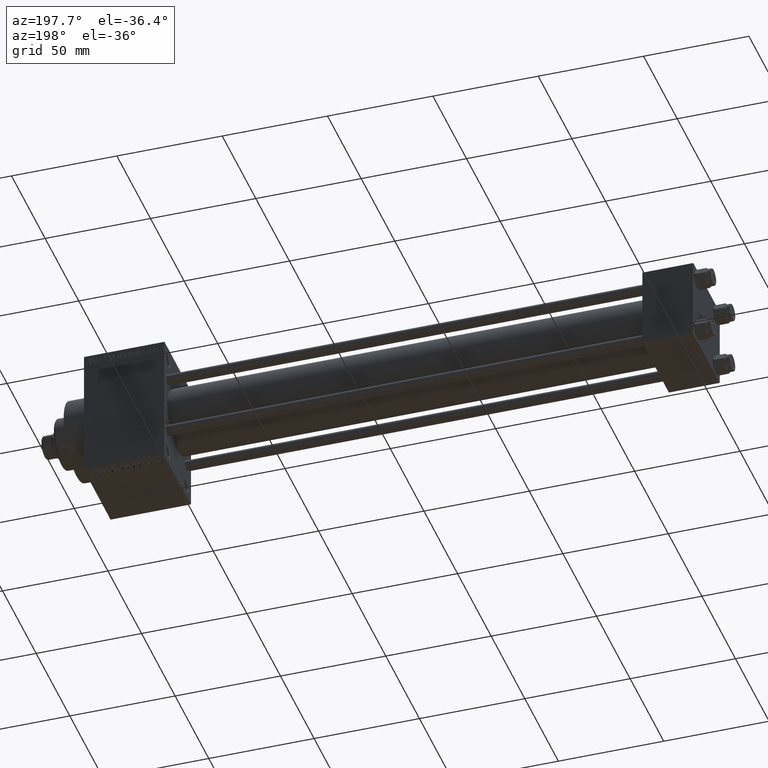
[diagram: clean part render]
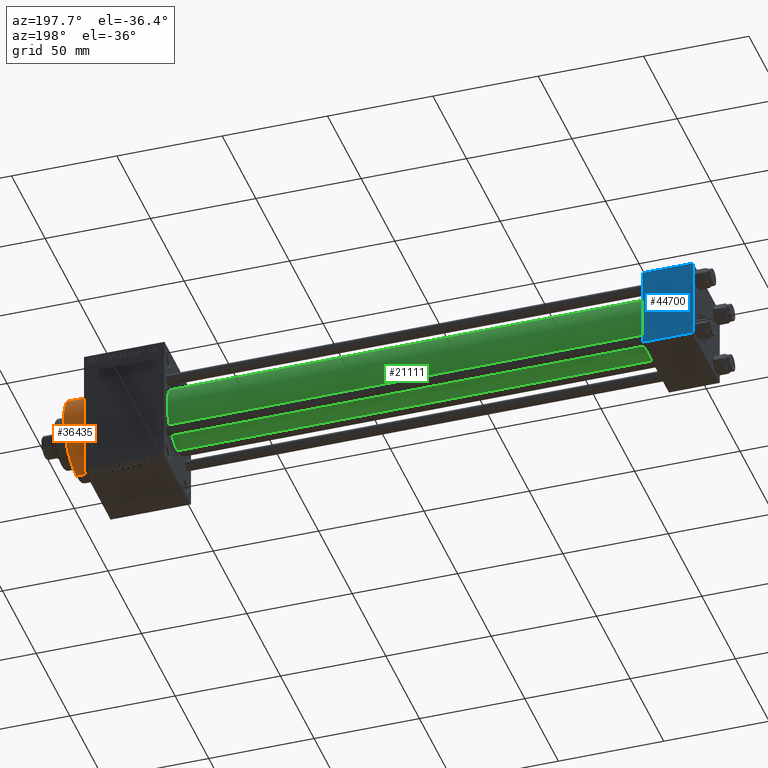
[diagram: same view with three faces highlighted in distinct colors, each labeled with its STEP entity id]
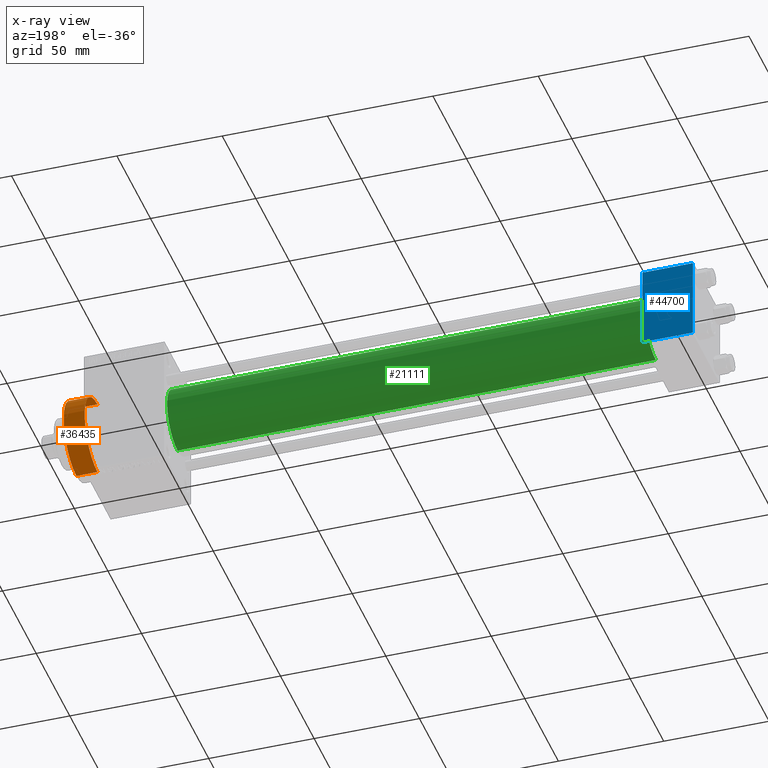
[diagram: x-ray of the same camera — body ghosted, the three highlighted faces saturated]
A machine part, auxiliary view with three faces highlighted in distinct colors.
The next image is the same camera in x-ray (body ghosted, the three faces saturated) — at least one of them is partly hidden behind the body in this view.
Their STEP definitions:

[orange] entity #36435 — the highlighted cylindrical surface (partial cylindrical patch) has radius 19 mm, axis along (-1, -0, -0).
#152 = VERTEX_POINT ( 'NONE', #42788 ) ;
#512 = VERTEX_POINT ( 'NONE', #36505 ) ;
#3167 = DIRECTION ( 'NONE',  ( 0.000000000000000000, 0.000000000000000000, 1.000000000000000000 ) ) ;
#3884 = CARTESIAN_POINT ( 'NONE',  ( 299.0000000000000000, 0.000000000000000000, 0.000000000000000000 ) ) ;
#6398 = CARTESIAN_POINT ( 'NONE',  ( 299.0000000000000000, 0.000000000000000000, 19.00000000000000000 ) ) ;
#7791 = DIRECTION ( 'NONE',  ( 1.000000000000000000, 0.000000000000000000, 0.000000000000000000 ) ) ;
#9221 = CARTESIAN_POINT ( 'NONE',  ( 289.0000000000000000, 0.000000000000000000, 0.000000000000000000 ) ) ;
#11062 = FACE_OUTER_BOUND ( 'NONE', #36525, .T. ) ;
#11696 = VECTOR ( 'NONE', #15354, 1000.000000000000000 ) ;
#11822 = AXIS2_PLACEMENT_3D ( 'NONE', #26181, #7791, #40547 ) ;
#15354 = DIRECTION ( 'NONE',  ( -1.000000000000000000, -0.000000000000000000, -0.000000000000000000 ) ) ;
#16657 = VERTEX_POINT ( 'NONE', #47095 ) ;
#21708 = LINE ( 'NONE', #6398, #30119 ) ;
#22040 = LINE ( 'NONE', #28969, #11696 ) ;
#23785 = DIRECTION ( 'NONE',  ( 1.000000000000000000, 0.000000000000000000, 0.000000000000000000 ) ) ;
#24570 = DIRECTION ( 'NONE',  ( -1.000000000000000000, -0.000000000000000000, -0.000000000000000000 ) ) ;
#26181 = CARTESIAN_POINT ( 'NONE',  ( 299.0000000000000000, 0.000000000000000000, 0.000000000000000000 ) ) ;
#28969 = CARTESIAN_POINT ( 'NONE',  ( 299.0000000000000000, 2.326828918379970970E-15, -19.00000000000000000 ) ) ;
#29525 = ORIENTED_EDGE ( 'NONE', *, *, #39839, .F. ) ;
#30119 = VECTOR ( 'NONE', #24570, 1000.000000000000000 ) ;
#31555 = ORIENTED_EDGE ( 'NONE', *, *, #32149, .F. ) ;
#32149 = EDGE_CURVE ( 'NONE', #152, #512, #33220, .T. ) ;
#32344 = DIRECTION ( 'NONE',  ( -1.000000000000000000, -0.000000000000000000, -0.000000000000000000 ) ) ;
#32638 = AXIS2_PLACEMENT_3D ( 'NONE', #9221, #23785, #38385 ) ;
#33051 = CYLINDRICAL_SURFACE ( 'NONE', #34043, 19.00000000000000000 ) ;
#33220 = CIRCLE ( 'NONE', #11822, 19.00000000000000000 ) ;
#34043 = AXIS2_PLACEMENT_3D ( 'NONE', #3884, #32344, #3167 ) ;
#34112 = ORIENTED_EDGE ( 'NONE', *, *, #46991, .T. ) ;
#36435 = ADVANCED_FACE ( 'NONE', ( #11062 ), #33051, .T. ) ;
#36505 = CARTESIAN_POINT ( 'NONE',  ( 299.0000000000000000, 0.000000000000000000, 19.00000000000000000 ) ) ;
#36525 = EDGE_LOOP ( 'NONE', ( #31555, #34112, #43983, #29525 ) ) ;
#38385 = DIRECTION ( 'NONE',  ( 0.000000000000000000, 0.000000000000000000, -1.000000000000000000 ) ) ;
#38511 = CARTESIAN_POINT ( 'NONE',  ( 289.0000000000000000, 2.326828918379970970E-15, -19.00000000000000000 ) ) ;
#38754 = CIRCLE ( 'NONE', #32638, 19.00000000000000000 ) ;
#39839 = EDGE_CURVE ( 'NONE', #512, #16657, #21708, .T. ) ;
#40547 = DIRECTION ( 'NONE',  ( 0.000000000000000000, 0.000000000000000000, -1.000000000000000000 ) ) ;
#40942 = VERTEX_POINT ( 'NONE', #38511 ) ;
#42788 = CARTESIAN_POINT ( 'NONE',  ( 299.0000000000000000, 2.326828918379970970E-15, -19.00000000000000000 ) ) ;
#43983 = ORIENTED_EDGE ( 'NONE', *, *, #44959, .T. ) ;
#44959 = EDGE_CURVE ( 'NONE', #40942, #16657, #38754, .T. ) ;
#46991 = EDGE_CURVE ( 'NONE', #152, #40942, #22040, .T. ) ;
#47095 = CARTESIAN_POINT ( 'NONE',  ( 289.0000000000000000, 0.000000000000000000, 19.00000000000000000 ) ) ;

[blue] entity #44700 — the highlighted planar face has unit normal (0, 1, 0).
#417 = EDGE_CURVE ( 'NONE', #13434, #4022, #35800, .T. ) ;
#612 = FACE_OUTER_BOUND ( 'NONE', #44817, .T. ) ;
#3453 = LINE ( 'NONE', #25680, #19511 ) ;
#3529 = DIRECTION ( 'NONE',  ( -1.000000000000000000, 0.000000000000000000, 0.000000000000000000 ) ) ;
#3778 = CARTESIAN_POINT ( 'NONE',  ( 24.00000000000000000, 20.00000000000000000, -19.50000000000002132 ) ) ;
#3929 = ORIENTED_EDGE ( 'NONE', *, *, #42499, .T. ) ;
#4022 = VERTEX_POINT ( 'NONE', #27703 ) ;
#4785 = DIRECTION ( 'NONE',  ( 1.000000000000000000, 0.000000000000000000, 0.000000000000000000 ) ) ;
#5897 = EDGE_CURVE ( 'NONE', #30251, #13434, #17427, .T. ) ;
#6851 = CARTESIAN_POINT ( 'NONE',  ( 24.00000000000000000, 20.00000000000000000, 20.00000000000000000 ) ) ;
#13434 = VERTEX_POINT ( 'NONE', #3778 ) ;
#15293 = ORIENTED_EDGE ( 'NONE', *, *, #35459, .F. ) ;
#17427 = LINE ( 'NONE', #42527, #29614 ) ;
#17977 = CARTESIAN_POINT ( 'NONE',  ( 24.00000000000000000, 20.00000000000000000, 19.49999999999999289 ) ) ;
#19511 = VECTOR ( 'NONE', #47211, 1000.000000000000000 ) ;
#22271 = ORIENTED_EDGE ( 'NONE', *, *, #417, .T. ) ;
#22722 = LINE ( 'NONE', #23656, #41700 ) ;
#23656 = CARTESIAN_POINT ( 'NONE',  ( 24.00000000000000000, 20.00000000000000000, 19.49999999999999289 ) ) ;
#25044 = CARTESIAN_POINT ( 'NONE',  ( 24.00000000000000000, 20.00000000000000000, -19.50000000000002132 ) ) ;
#25680 = CARTESIAN_POINT ( 'NONE',  ( 0.000000000000000000, 20.00000000000000000, 20.00000000000000000 ) ) ;
#25954 = PLANE ( 'NONE',  #44830 ) ;
#27703 = CARTESIAN_POINT ( 'NONE',  ( 0.000000000000000000, 20.00000000000000000, -19.50000000000002132 ) ) ;
#28412 = DIRECTION ( 'NONE',  ( 0.000000000000000000, 0.000000000000000000, -1.000000000000000000 ) ) ;
#29156 = CARTESIAN_POINT ( 'NONE',  ( 0.000000000000000000, 20.00000000000000000, 19.49999999999999289 ) ) ;
#29614 = VECTOR ( 'NONE', #28412, 1000.000000000000000 ) ;
#30251 = VERTEX_POINT ( 'NONE', #17977 ) ;
#32676 = DIRECTION ( 'NONE',  ( -0.000000000000000000, 1.000000000000000000, 0.000000000000000000 ) ) ;
#33383 = DIRECTION ( 'NONE',  ( 0.000000000000000000, -0.000000000000000000, 1.000000000000000000 ) ) ;
#35459 = EDGE_CURVE ( 'NONE', #38884, #4022, #3453, .T. ) ;
#35800 = LINE ( 'NONE', #25044, #36280 ) ;
#36280 = VECTOR ( 'NONE', #3529, 1000.000000000000000 ) ;
#38884 = VERTEX_POINT ( 'NONE', #29156 ) ;
#41700 = VECTOR ( 'NONE', #4785, 1000.000000000000000 ) ;
#42499 = EDGE_CURVE ( 'NONE', #38884, #30251, #22722, .T. ) ;
#42527 = CARTESIAN_POINT ( 'NONE',  ( 24.00000000000000000, 20.00000000000000000, 20.00000000000000000 ) ) ;
#44700 = ADVANCED_FACE ( 'NONE', ( #612 ), #25954, .T. ) ;
#44817 = EDGE_LOOP ( 'NONE', ( #46018, #22271, #15293, #3929 ) ) ;
#44830 = AXIS2_PLACEMENT_3D ( 'NONE', #6851, #32676, #33383 ) ;
#46018 = ORIENTED_EDGE ( 'NONE', *, *, #5897, .T. ) ;
#47211 = DIRECTION ( 'NONE',  ( 0.000000000000000000, 0.000000000000000000, -1.000000000000000000 ) ) ;

[green] entity #21111 — the highlighted cylindrical surface (edge-blend (fillet) strip) has radius 15.5 mm, axis along (-1, -0, -0).
#517 = CARTESIAN_POINT ( 'NONE',  ( 251.0000000000000000, -2.602085213965210642E-15, 15.50000000000000000 ) ) ;
#1562 = ORIENTED_EDGE ( 'NONE', *, *, #38674, .F. ) ;
#6655 = EDGE_LOOP ( 'NONE', ( #14176, #9761, #33037, #1562 ) ) ;
#6853 = CYLINDRICAL_SURFACE ( 'NONE', #32257, 15.50000000000000000 ) ;
#8049 = DIRECTION ( 'NONE',  ( 1.000000000000000000, 0.000000000000000000, 0.000000000000000000 ) ) ;
#9731 = CARTESIAN_POINT ( 'NONE',  ( 251.0000000000000000, -2.602085213965210642E-15, 15.50000000000000000 ) ) ;
#9761 = ORIENTED_EDGE ( 'NONE', *, *, #37328, .T. ) ;
#11579 = VERTEX_POINT ( 'NONE', #47221 ) ;
#11759 = VECTOR ( 'NONE', #29699, 1000.000000000000000 ) ;
#12106 = VERTEX_POINT ( 'NONE', #32994 ) ;
#13457 = VECTOR ( 'NONE', #21887, 1000.000000000000000 ) ;
#14176 = ORIENTED_EDGE ( 'NONE', *, *, #44828, .F. ) ;
#15946 = CARTESIAN_POINT ( 'NONE',  ( 251.0000000000000000, -7.038826752868134786E-16, -15.50000000000000000 ) ) ;
#16925 = FACE_OUTER_BOUND ( 'NONE', #6655, .T. ) ;
#17165 = CARTESIAN_POINT ( 'NONE',  ( 251.0000000000000000, -2.602085213965210642E-15, 0.000000000000000000 ) ) ;
#19263 = EDGE_CURVE ( 'NONE', #11579, #12106, #43619, .T. ) ;
#21111 = ADVANCED_FACE ( 'NONE', ( #16925 ), #6853, .T. ) ;
#21887 = DIRECTION ( 'NONE',  ( -1.000000000000000000, -0.000000000000000000, -0.000000000000000000 ) ) ;
#24336 = DIRECTION ( 'NONE',  ( 1.000000000000000000, 0.000000000000000000, 0.000000000000000000 ) ) ;
#24778 = DIRECTION ( 'NONE',  ( -1.000000000000000000, -0.000000000000000000, -0.000000000000000000 ) ) ;
#29699 = DIRECTION ( 'NONE',  ( -1.000000000000000000, -0.000000000000000000, -0.000000000000000000 ) ) ;
#30506 = DIRECTION ( 'NONE',  ( 0.000000000000000000, 0.000000000000000000, -1.000000000000000000 ) ) ;
#31066 = DIRECTION ( 'NONE',  ( 0.000000000000000000, 0.000000000000000000, 1.000000000000000000 ) ) ;
#31411 = AXIS2_PLACEMENT_3D ( 'NONE', #38002, #24336, #31066 ) ;
#32257 = AXIS2_PLACEMENT_3D ( 'NONE', #17165, #24778, #38690 ) ;
#32994 = CARTESIAN_POINT ( 'NONE',  ( 23.99999999999999289, -2.602085213965210642E-15, 15.50000000000000000 ) ) ;
#33037 = ORIENTED_EDGE ( 'NONE', *, *, #19263, .T. ) ;
#33526 = LINE ( 'NONE', #517, #11759 ) ;
#34116 = CIRCLE ( 'NONE', #46333, 15.50000000000000000 ) ;
#34397 = VERTEX_POINT ( 'NONE', #15946 ) ;
#37328 = EDGE_CURVE ( 'NONE', #34397, #11579, #40301, .T. ) ;
#38002 = CARTESIAN_POINT ( 'NONE',  ( 23.99999999999999289, -2.602085213965210642E-15, 0.000000000000000000 ) ) ;
#38674 = EDGE_CURVE ( 'NONE', #43715, #12106, #33526, .T. ) ;
#38690 = DIRECTION ( 'NONE',  ( 0.000000000000000000, 0.000000000000000000, 1.000000000000000000 ) ) ;
#40301 = LINE ( 'NONE', #43876, #13457 ) ;
#43619 = CIRCLE ( 'NONE', #31411, 15.50000000000000000 ) ;
#43715 = VERTEX_POINT ( 'NONE', #9731 ) ;
#43876 = CARTESIAN_POINT ( 'NONE',  ( 251.0000000000000000, -7.038826752868134786E-16, -15.50000000000000000 ) ) ;
#44379 = CARTESIAN_POINT ( 'NONE',  ( 251.0000000000000000, -2.602085213965210642E-15, 0.000000000000000000 ) ) ;
#44828 = EDGE_CURVE ( 'NONE', #34397, #43715, #34116, .T. ) ;
#46333 = AXIS2_PLACEMENT_3D ( 'NONE', #44379, #8049, #30506 ) ;
#47221 = CARTESIAN_POINT ( 'NONE',  ( 23.99999999999999289, -7.038826752868134786E-16, -15.50000000000000000 ) ) ;